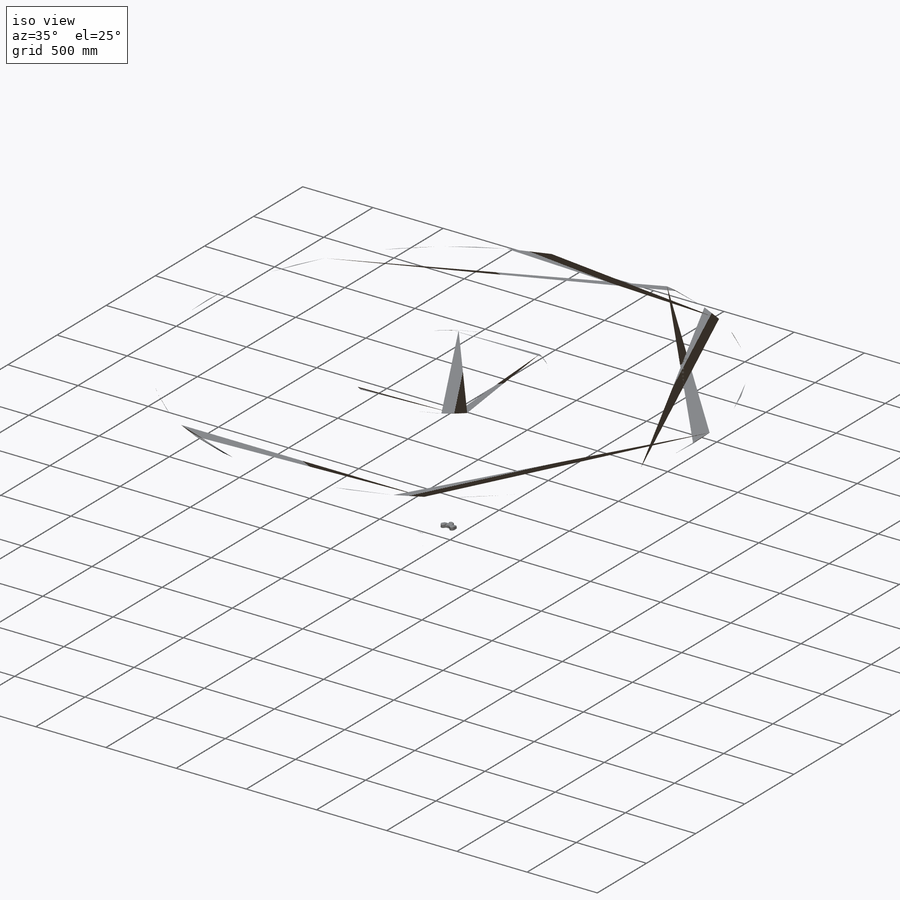
[diagram: iso view]
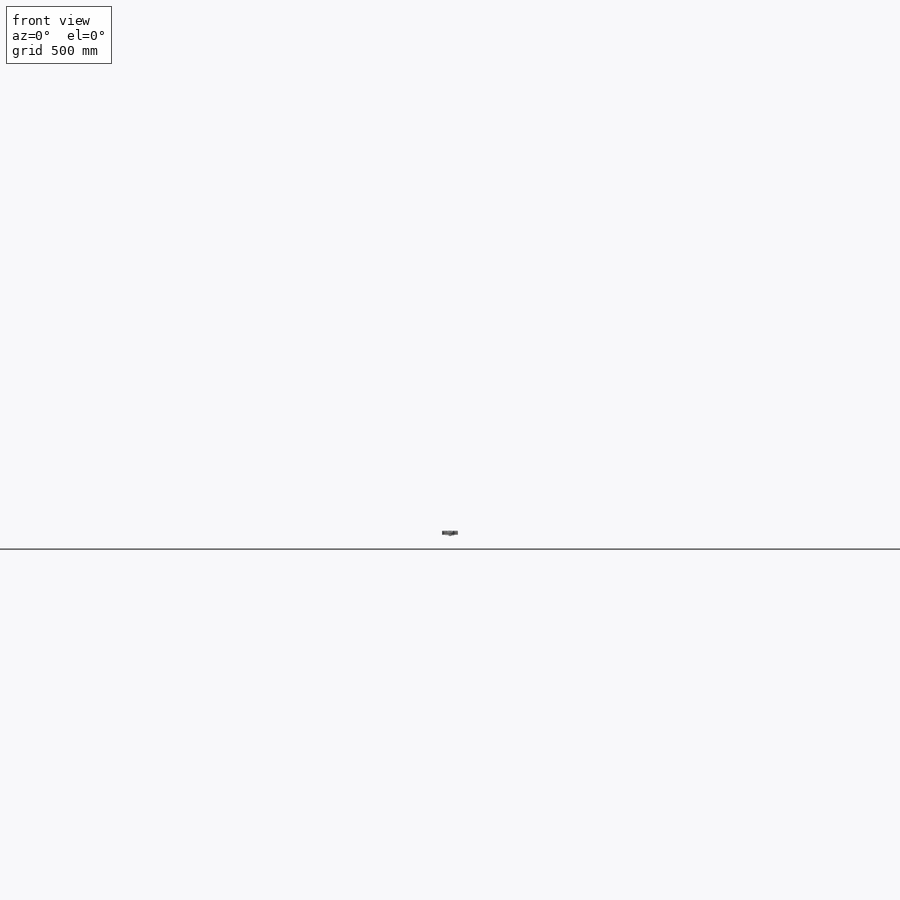
[diagram: front view]
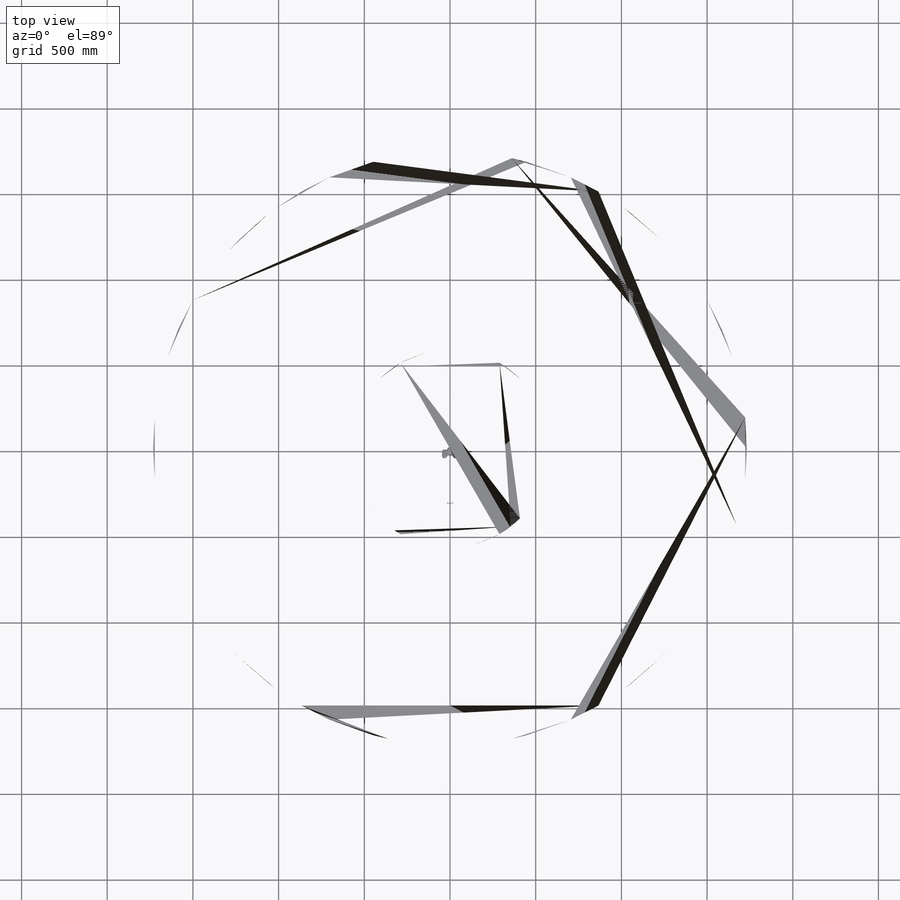
[diagram: top view]
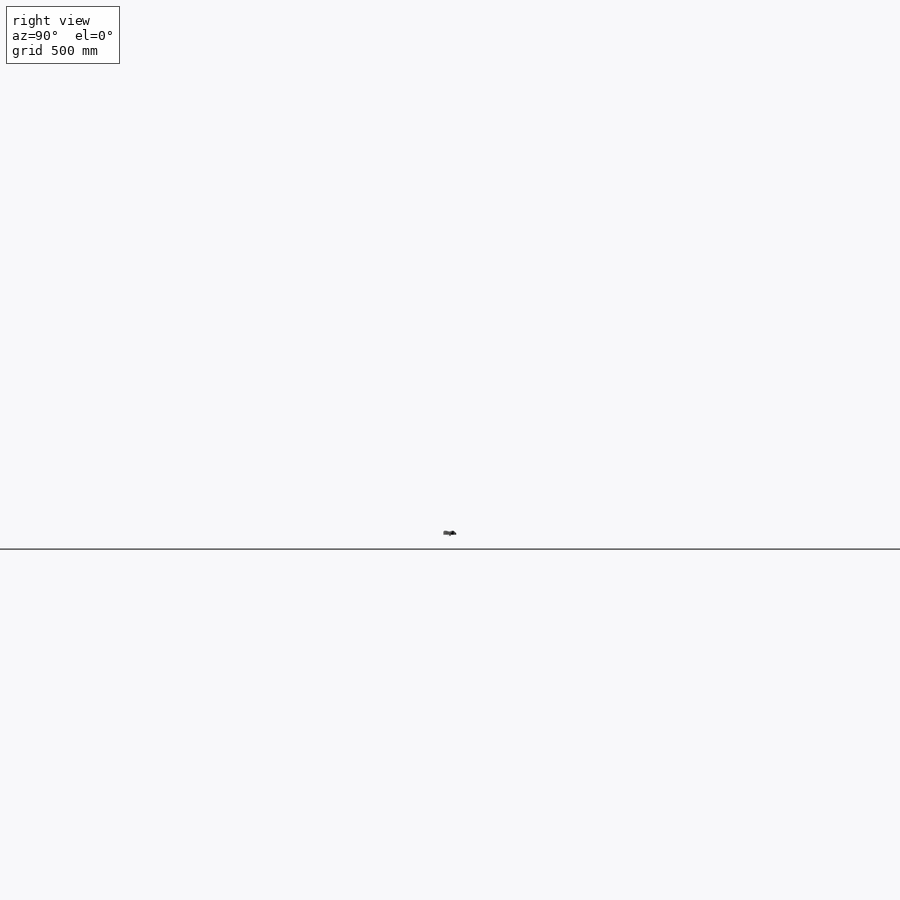
[diagram: right view]
SOLIDWORKS PART (.sldprt)
format: sldprt  version: not decoded by parser v0  size: 801,280 bytes
history: native  units: mm
features: sketch x4, cut_extrude x3, fillet x2, material x1, extrude x1, mirror x1 + 2 further entries (+22 scaffold rows collapsed; 6 parser-record rows omitted)
feature tree (42):
  scaffold x22  (default folders/planes/origin — collapsed)
  material  "ABS"
  "d3_base_o"
  parser-record x6  (decoder bookkeeping rows leaked as tree rows — omitted from the tree; the rows remain in map.json)
  "params_finger_t"
  sketch  "Sketch1"  dims[D1=0.0mm D2=1.0mm]
  extrude  "Urethane Body"  Depth=22.5mm
  sketch  "Sketch2"  dims[c1.D1=20.0mm c1.D2=62.5mm c1.D3=37.5mm c1.D4=~22.925717mm c2.D4=125.0deg c2.D5=62.5mm c3.D5=105.0deg c3.D7=15.0mm c3.D8=20.0mm c3.D6=9.0mm]
  cut_extrude  "Profile - Center"  Depth=30mm
  sketch  "Sketch3"  dims[c1.D1=20.0mm c1.D2=62.5mm c1.D3=37.5mm c1.D4=~50.44332mm c2.D4=105.0deg c2.D5=~23.822923mm c3.D5=135.0deg c3.D7=20.0mm c3.D6=9.0mm]
  cut_extrude  "Profile - Side"  Depth=45mm
  mirror  "Mirror1"
  fillet  "Urethane Contouring"  Radius=4mm
  fillet  "Urethane Contouring 2"  Radius=4mm
  sketch  "Sketch4"  dims[D1=10.0mm D2=8.0mm]
  cut_extrude  "Yale Logo"  Depth=1mm
decode coverage: 10 of 11 modeling features carry decoded parameters; 2 rows unclassified (native names shown)
note: ~ marks probable driven/reference dimensions
note: suppression state not decoded; provenance and decode notes live in map.json
